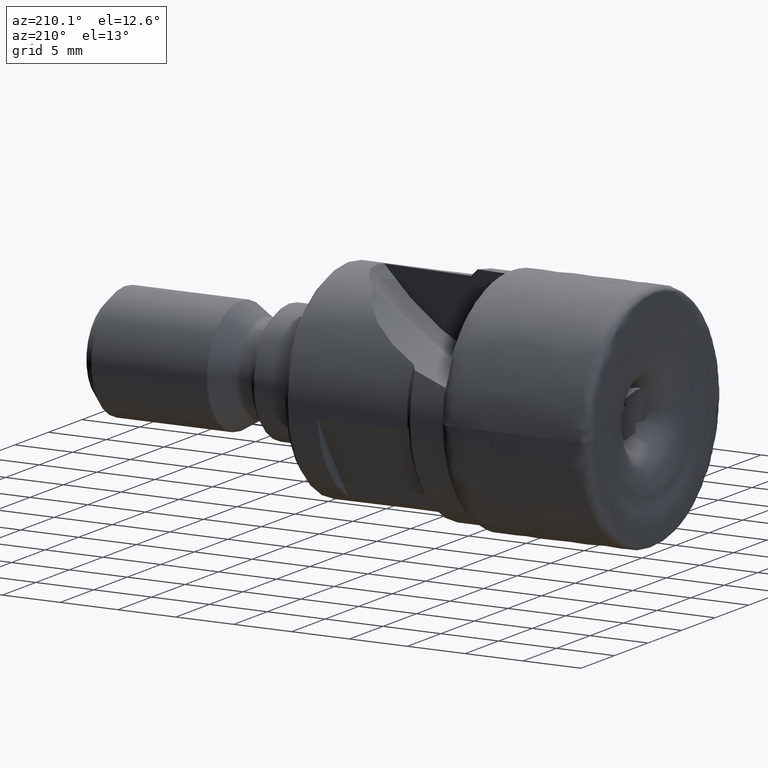
[diagram: clean part render]
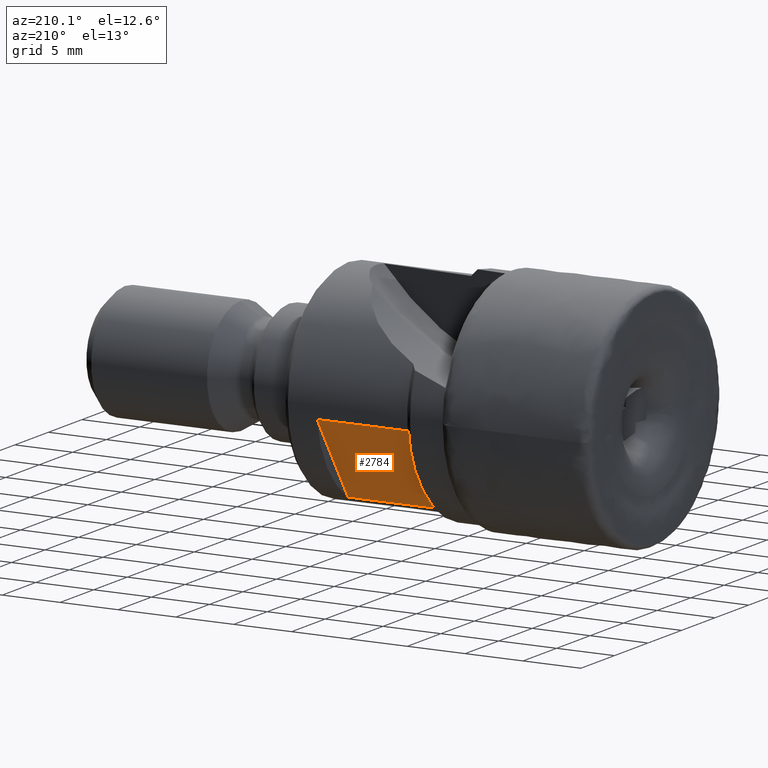
[diagram: same view with one face highlighted and labeled with its STEP entity id]
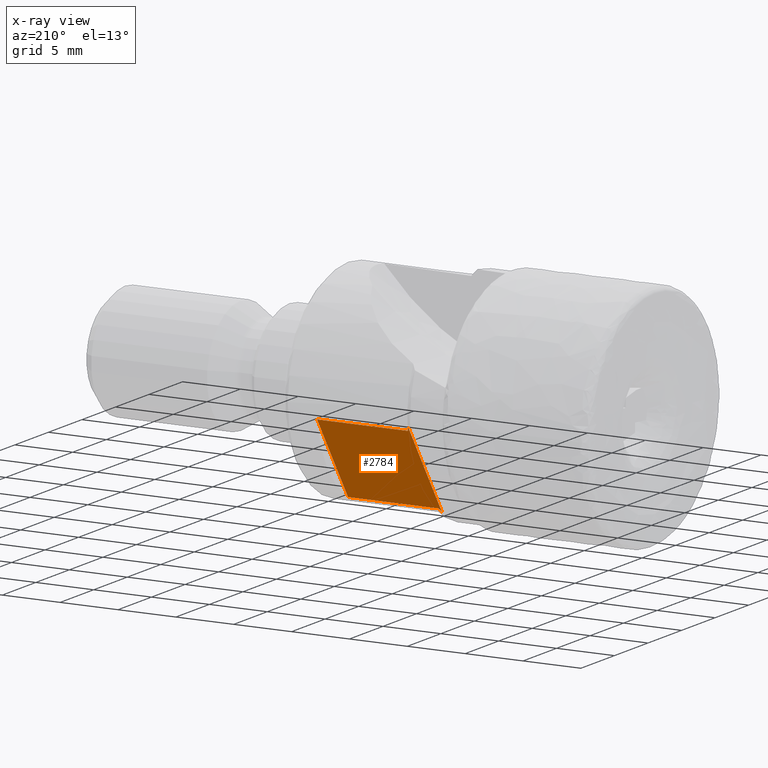
[diagram: x-ray of the same camera — body ghosted, the highlighted face saturated]
A machine part, auxiliary view. The second image highlights one B-rep face of the part: STEP entity #2784.
The next image is the same camera in x-ray: the body ghosted, the highlighted face saturated — about 0% of this face is hidden behind the body in this view.
In plain terms, the highlighted planar face has unit normal (0, -0.829, 0.5592).
Its self-contained STEP definition (entity closure, byte-faithful):
#104 = LINE ( 'NONE', #3087, #106 ) ;
#106 = VECTOR ( 'NONE', #3089, 1000.000000000000000 ) ;
#691 = CARTESIAN_POINT ( 'NONE',  ( 15.02161554572657600, 9.009177090864191900, -0.9496788864368105300 ) ) ;
#692 = CARTESIAN_POINT ( 'NONE',  ( 15.08000000000000000, 8.937911986546041000, -1.055333748515887800 ) ) ;
#696 = CARTESIAN_POINT ( 'NONE',  ( 14.96155988177536100, 9.079874186483724700, -0.8448661318840780000 ) ) ;
#697 = CARTESIAN_POINT ( 'NONE',  ( 14.90000000000000000, 9.150060030391348000, -0.7408113391645081400 ) ) ;
#698 = CARTESIAN_POINT ( 'NONE',  ( 14.90000000000000000, 4.114541130489310000, -8.206275116367459400 ) ) ;
#699 = CARTESIAN_POINT ( 'NONE',  ( 14.96161790714143800, 4.184793130457865800, -8.102122243254120400 ) ) ;
#704 = CARTESIAN_POINT ( 'NONE',  ( 15.02167243264134400, 4.255493507197393800, -7.997304624240949300 ) ) ;
#705 = CARTESIAN_POINT ( 'NONE',  ( 15.08000000000000000, 4.326689174334616100, -7.891752707016079800 ) ) ;
#792 = CARTESIAN_POINT ( 'NONE',  ( 15.08000000000000000, 4.326689174334616100, -7.891752707016079800 ) ) ;
#869 = CARTESIAN_POINT ( 'NONE',  ( 14.90000000000000000, 9.150060030391348000, -0.7408113391645081400 ) ) ;
#870 = CARTESIAN_POINT ( 'NONE',  ( 15.08000000000000000, 8.937911986546041000, -1.055333748515887800 ) ) ;
#898 = CARTESIAN_POINT ( 'NONE',  ( 22.89999999999999900, 4.326689174334615200, -7.891752707016083300 ) ) ;
#987 = DIRECTION ( 'NONE',  ( 1.000000000000000000, 0.0000000000000000000, 0.0000000000000000000 ) ) ;
#1039 = CARTESIAN_POINT ( 'NONE',  ( -1.204097998414197200E-015, 4.326689174334614300, -7.891752707016083300 ) ) ;
#1074 = CARTESIAN_POINT ( 'NONE',  ( 14.90000000000000000, 3.836336063086587300, -8.618731090541189100 ) ) ;
#1085 = CARTESIAN_POINT ( 'NONE',  ( 22.89999999999999900, 3.836336063086589000, -8.618731090541190900 ) ) ;
#1088 = DIRECTION ( 'NONE',  ( -0.0000000000000000000, 0.5591929034707479000, 0.8290375725550409600 ) ) ;
#1090 = DIRECTION ( 'NONE',  ( -0.0000000000000000000, 0.5591929034707479000, 0.8290375725550409600 ) ) ;
#1174 = LINE ( 'NONE', #1074, #1185 ) ;
#1178 = LINE ( 'NONE', #1085, #1189 ) ;
#1185 = VECTOR ( 'NONE', #1088, 1000.000000000000100 ) ;
#1189 = VECTOR ( 'NONE', #1090, 1000.000000000000100 ) ;
#1230 = LINE ( 'NONE', #1039, #1238 ) ;
#1238 = VECTOR ( 'NONE', #987, 1000.000000000000000 ) ;
#1326 = VERTEX_POINT ( 'NONE', #3908 ) ;
#1344 = VERTEX_POINT ( 'NONE', #792 ) ;
#1408 = VERTEX_POINT ( 'NONE', #870 ) ;
#1416 = VERTEX_POINT ( 'NONE', #869 ) ;
#1418 = VERTEX_POINT ( 'NONE', #898 ) ;
#1434 = VERTEX_POINT ( 'NONE', #3164 ) ;
#1679 = ORIENTED_EDGE ( 'NONE', *, *, #3350, .F. ) ;
#1686 = ORIENTED_EDGE ( 'NONE', *, *, #3296, .F. ) ;
#1711 = ORIENTED_EDGE ( 'NONE', *, *, #3348, .F. ) ;
#1735 = ORIENTED_EDGE ( 'NONE', *, *, #3335, .F. ) ;
#1755 = ORIENTED_EDGE ( 'NONE', *, *, #3295, .T. ) ;
#1789 = ORIENTED_EDGE ( 'NONE', *, *, #3732, .F. ) ;
#2784 = ADVANCED_FACE ( 'NONE', ( #3865 ), #3000, .F. ) ;
#2998 = CARTESIAN_POINT ( 'NONE',  ( 22.89999999999999900, 3.836336063086589000, -8.618731090541190900 ) ) ;
#3000 = PLANE ( 'NONE',  #3267 ) ;
#3087 = CARTESIAN_POINT ( 'NONE',  ( -1.204097998414197200E-015, 8.937911986546042800, -1.055333748515885800 ) ) ;
#3089 = DIRECTION ( 'NONE',  ( -1.000000000000000000, -0.0000000000000000000, -0.0000000000000000000 ) ) ;
#3164 = CARTESIAN_POINT ( 'NONE',  ( 22.89999999999999900, 8.937911986546044600, -1.055333748515884900 ) ) ;
#3267 = AXIS2_PLACEMENT_3D ( 'NONE', #2998, #4206, #4207 ) ;
#3295 = EDGE_CURVE ( 'NONE', #1326, #1416, #1174, .T. ) ;
#3296 = EDGE_CURVE ( 'NONE', #1418, #1434, #1178, .T. ) ;
#3335 = EDGE_CURVE ( 'NONE', #1344, #1418, #1230, .T. ) ;
#3348 = EDGE_CURVE ( 'NONE', #1408, #1416, #3765, .T. ) ;
#3350 = EDGE_CURVE ( 'NONE', #1326, #1344, #3767, .T. ) ;
#3732 = EDGE_CURVE ( 'NONE', #1434, #1408, #104, .T. ) ;
#3765 = B_SPLINE_CURVE_WITH_KNOTS ( 'NONE', 3,
 ( #692, #691, #696, #697 ),
 .UNSPECIFIED., .F., .F.,
 ( 4, 4 ),
 ( 0.01843945440248651000, 0.01886041995544039000 ),
 .UNSPECIFIED. ) ;
#3767 = B_SPLINE_CURVE_WITH_KNOTS ( 'NONE', 3,
 ( #698, #699, #704, #705 ),
 .UNSPECIFIED., .F., .F.,
 ( 4, 4 ),
 ( 0.009484455539932653400, 0.009906246781371520100 ),
 .UNSPECIFIED. ) ;
#3865 = FACE_OUTER_BOUND ( 'NONE', #4050, .T. ) ;
#3908 = CARTESIAN_POINT ( 'NONE',  ( 14.90000000000000000, 4.114541130489310000, -8.206275116367459400 ) ) ;
#4050 = EDGE_LOOP ( 'NONE', ( #1679, #1755, #1711, #1789, #1686, #1735 ) ) ;
#4206 = DIRECTION ( 'NONE',  ( 1.505122498017746300E-016, -0.8290375725550409600, 0.5591929034707479000 ) ) ;
#4207 = DIRECTION ( 'NONE',  ( 0.0000000000000000000, -0.5591929034707479000, -0.8290375725550409600 ) ) ;